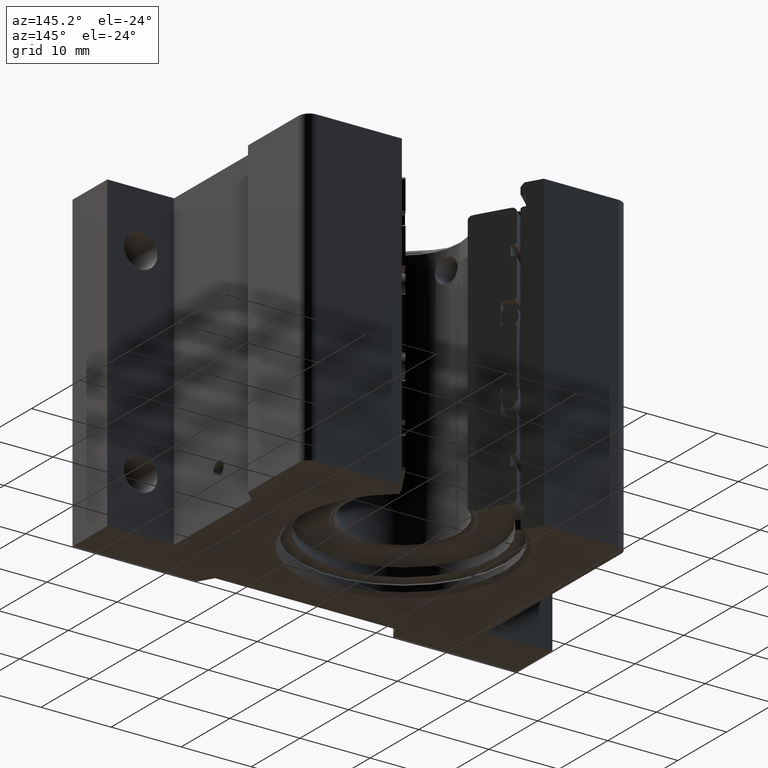
[diagram: clean part render]
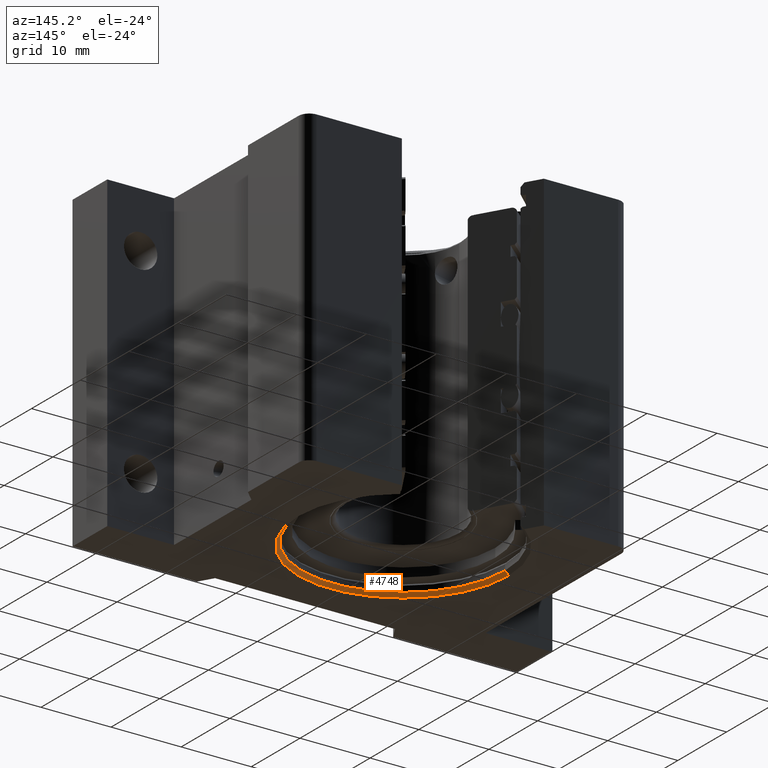
[diagram: same view with one face highlighted and labeled with its STEP entity id]
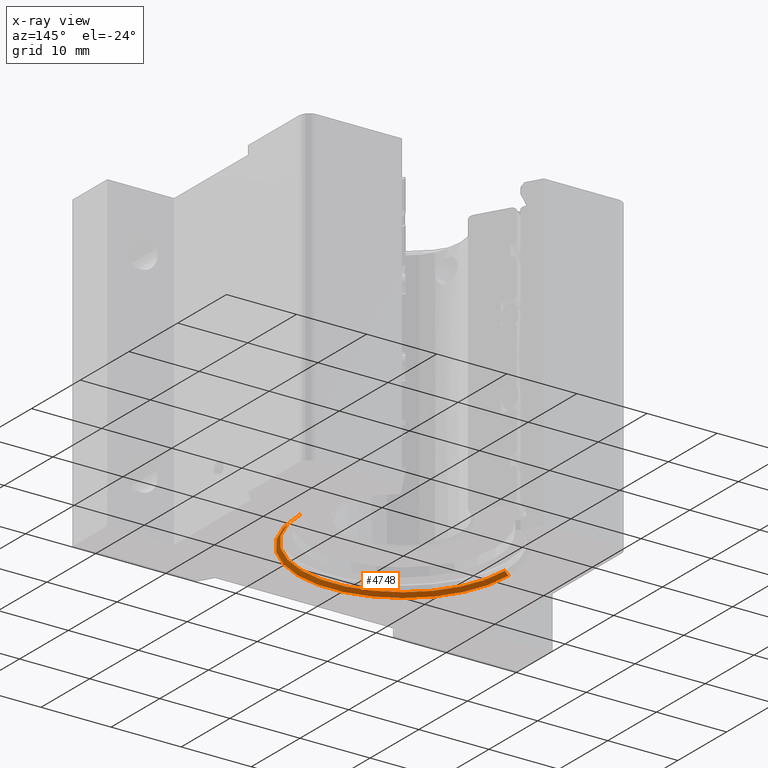
[diagram: x-ray of the same camera — body ghosted, the highlighted face saturated]
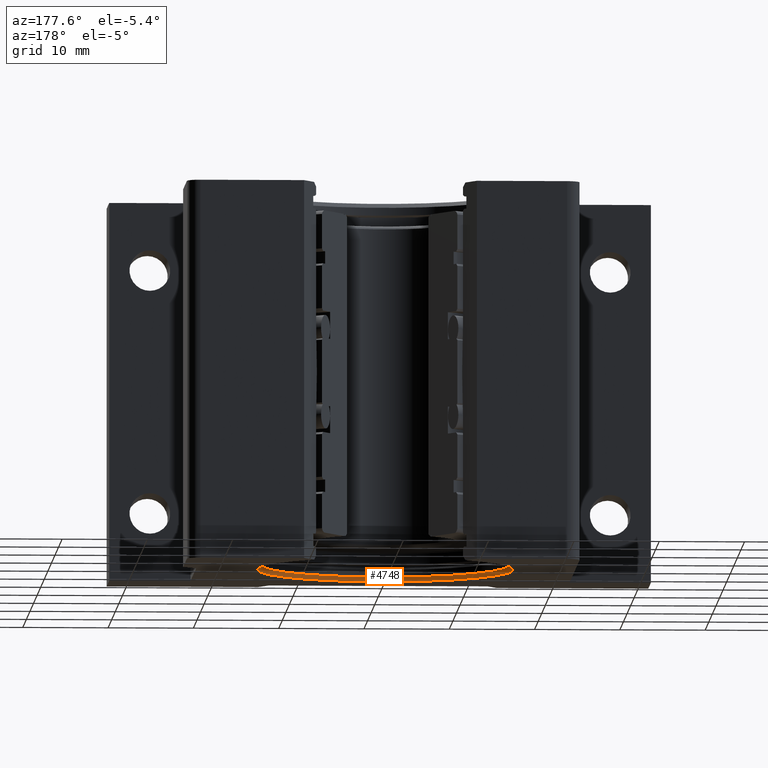
[diagram: same view with one face highlighted and labeled with its STEP entity id]
A machine part, auxiliary view. The second image highlights one B-rep face of the part: STEP entity #4748.
The next image is the same camera in x-ray: the body ghosted, the highlighted face saturated — about 0% of this face is hidden behind the body in this view.
A second angle (auxiliary view) of the same face is appended — the face is thin or edge-on in the first view.
In plain terms, the highlighted conical surface has half-angle 45 deg.
Its self-contained STEP definition (entity closure, byte-faithful):
#49 = CONICAL_SURFACE ( 'NONE', #2615, 0.5904999999999986926, 0.7853981633974533860 ) ;
#233 = DIRECTION ( 'NONE',  ( -0.0000000000000000000, -0.0000000000000000000, -1.000000000000000000 ) ) ;
#265 = CARTESIAN_POINT ( 'NONE',  ( 0.5705000000000000071, 0.0000000000000000000, -0.8550000000000014255 ) ) ;
#1092 = VERTEX_POINT ( 'NONE', #8588 ) ;
#1117 = DIRECTION ( 'NONE',  ( -0.7071067811865511255, 0.0000000000000000000, -0.7071067811865439090 ) ) ;
#1865 = DIRECTION ( 'NONE',  ( -0.0000000000000000000, -0.0000000000000000000, -1.000000000000000000 ) ) ;
#1887 = ORIENTED_EDGE ( 'NONE', *, *, #3085, .T. ) ;
#1934 = EDGE_CURVE ( 'NONE', #2125, #1092, #2068, .T. ) ;
#2068 = CIRCLE ( 'NONE', #7721, 0.5705000000000000071 ) ;
#2125 = VERTEX_POINT ( 'NONE', #265 ) ;
#2457 = VERTEX_POINT ( 'NONE', #4590 ) ;
#2615 = AXIS2_PLACEMENT_3D ( 'NONE', #6379, #233, #10644 ) ;
#2726 = DIRECTION ( 'NONE',  ( 1.000000000000000000, 0.0000000000000000000, 0.0000000000000000000 ) ) ;
#2796 = ORIENTED_EDGE ( 'NONE', *, *, #1934, .F. ) ;
#3085 = EDGE_CURVE ( 'NONE', #2125, #8111, #8971, .T. ) ;
#3299 = DIRECTION ( 'NONE',  ( 0.7071067811865511255, 8.659560562354977232E-17, -0.7071067811865439090 ) ) ;
#3387 = ORIENTED_EDGE ( 'NONE', *, *, #3481, .F. ) ;
#3406 = FACE_OUTER_BOUND ( 'NONE', #5586, .T. ) ;
#3481 = EDGE_CURVE ( 'NONE', #2457, #8111, #4726, .T. ) ;
#3712 = CARTESIAN_POINT ( 'NONE',  ( 0.5904999999999986926, 7.231539348965104059E-17, -0.8749999999999997780 ) ) ;
#3752 = ORIENTED_EDGE ( 'NONE', *, *, #11220, .F. ) ;
#4015 = DIRECTION ( 'NONE',  ( 1.000000000000000000, 0.0000000000000000000, 0.0000000000000000000 ) ) ;
#4082 = CARTESIAN_POINT ( 'NONE',  ( 0.5904999999999986926, 7.231539348965104059E-17, -0.8749999999999997780 ) ) ;
#4590 = CARTESIAN_POINT ( 'NONE',  ( -0.5904999999999986926, 0.0000000000000000000, -0.8749999999999997780 ) ) ;
#4632 = VECTOR ( 'NONE', #3299, 39.37007874015748143 ) ;
#4726 = CIRCLE ( 'NONE', #6715, 0.5904999999999986926 ) ;
#4736 = DIRECTION ( 'NONE',  ( -0.0000000000000000000, 0.0000000000000000000, 1.000000000000000000 ) ) ;
#4748 = ADVANCED_FACE ( 'NONE', ( #3406 ), #49, .F. ) ;
#5586 = EDGE_LOOP ( 'NONE', ( #2796, #1887, #3387, #3752 ) ) ;
#6379 = CARTESIAN_POINT ( 'NONE',  ( 0.0000000000000000000, 0.0000000000000000000, -0.8749999999999997780 ) ) ;
#6715 = AXIS2_PLACEMENT_3D ( 'NONE', #7357, #4736, #4015 ) ;
#7025 = CARTESIAN_POINT ( 'NONE',  ( 0.0000000000000000000, 0.0000000000000000000, -0.8550000000000014255 ) ) ;
#7094 = VECTOR ( 'NONE', #1117, 39.37007874015748143 ) ;
#7357 = CARTESIAN_POINT ( 'NONE',  ( 0.0000000000000000000, 0.0000000000000000000, -0.8749999999999997780 ) ) ;
#7721 = AXIS2_PLACEMENT_3D ( 'NONE', #7025, #1865, #2726 ) ;
#7859 = CARTESIAN_POINT ( 'NONE',  ( -0.5904999999999986926, 0.0000000000000000000, -0.8749999999999997780 ) ) ;
#8111 = VERTEX_POINT ( 'NONE', #3712 ) ;
#8473 = LINE ( 'NONE', #7859, #7094 ) ;
#8588 = CARTESIAN_POINT ( 'NONE',  ( -0.5705000000000000071, 6.986609989135649984E-17, -0.8550000000000014255 ) ) ;
#8971 = LINE ( 'NONE', #4082, #4632 ) ;
#10644 = DIRECTION ( 'NONE',  ( -1.000000000000000000, 0.0000000000000000000, 0.0000000000000000000 ) ) ;
#11220 = EDGE_CURVE ( 'NONE', #1092, #2457, #8473, .T. ) ;